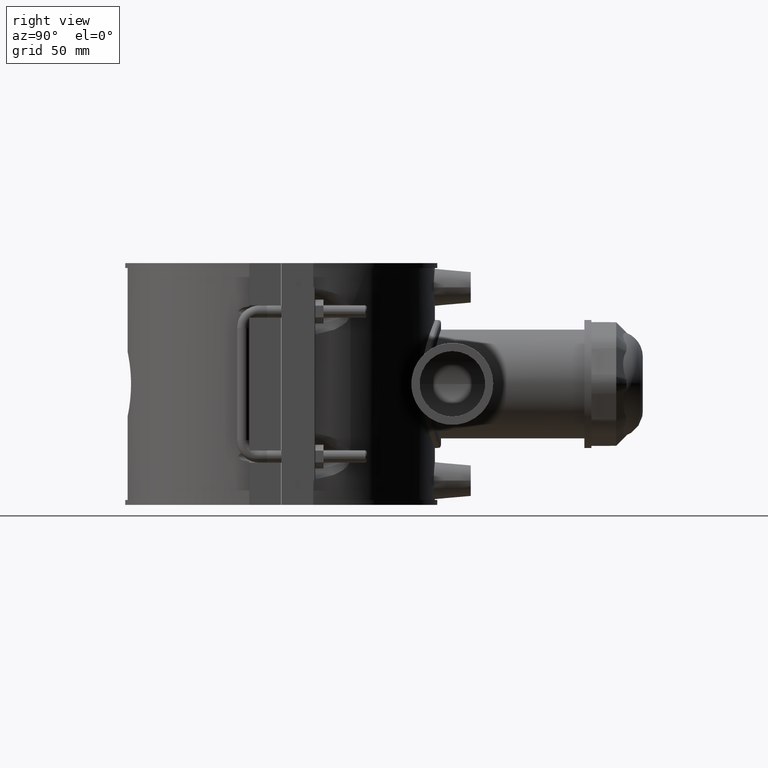
[diagram: clean part render]
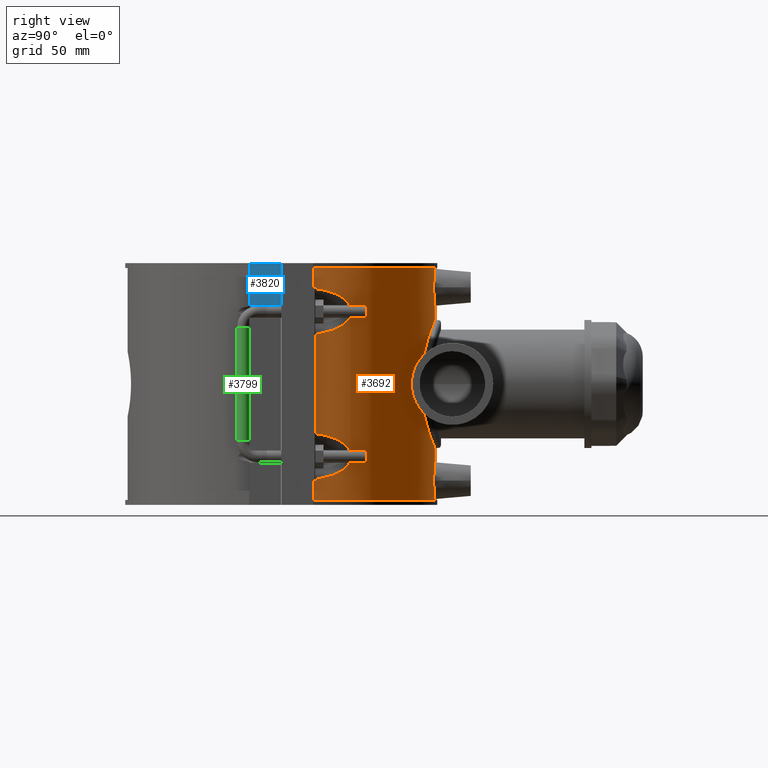
[diagram: same view with three faces highlighted in distinct colors, each labeled with its STEP entity id]
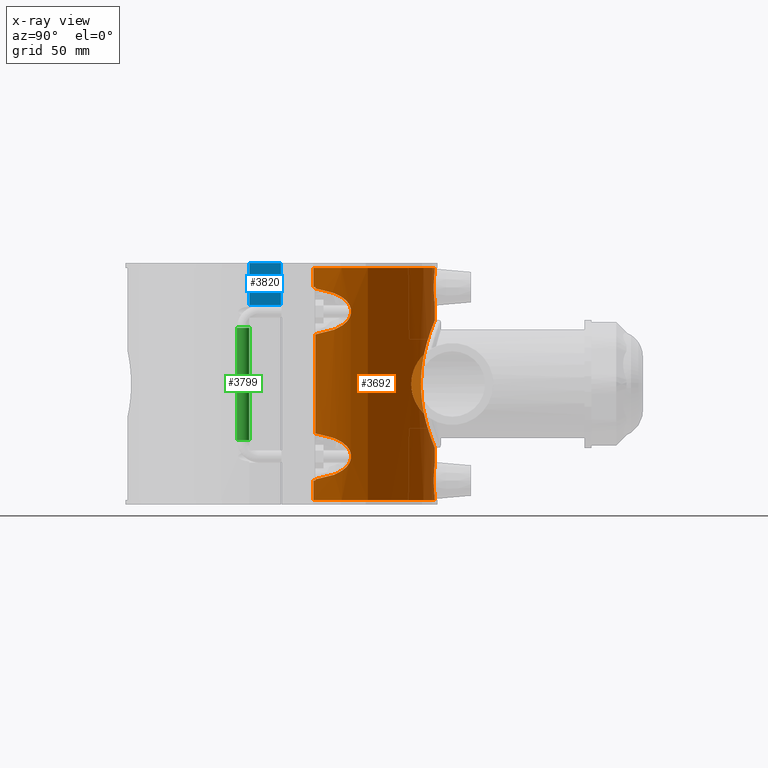
[diagram: x-ray of the same camera — body ghosted, the three highlighted faces saturated]
A machine part, right view with three faces highlighted in distinct colors.
The next image is the same camera in x-ray (body ghosted, the three faces saturated) — at least one of them is partly hidden behind the body in this view.
Their STEP definitions:

[orange] entity #3692 — the highlighted cylindrical surface (partial cylindrical patch) has radius 75 mm, axis along (0, 0, 1).
#117=LINE('',#6506,#416);
#133=LINE('',#6554,#432);
#137=LINE('',#6562,#436);
#138=LINE('',#6566,#437);
#139=LINE('',#6583,#438);
#140=LINE('',#6600,#439);
#141=LINE('',#6603,#440);
#142=LINE('',#6607,#441);
#143=LINE('',#6624,#442);
#144=LINE('',#6641,#443);
#416=VECTOR('',#4444,9.43999999999999);
#432=VECTOR('',#4486,9.43999999999999);
#436=VECTOR('',#4492,9.43999999999999);
#437=VECTOR('',#4495,0.588591724710401);
#438=VECTOR('',#4496,48.3771834494208);
#439=VECTOR('',#4497,0.588591724710401);
#440=VECTOR('',#4500,9.43999999999999);
#441=VECTOR('',#4503,0.58859172471041);
#442=VECTOR('',#4504,48.3771834494208);
#443=VECTOR('',#4505,0.588591724710401);
#823=CIRCLE('',#3933,75.);
#830=CIRCLE('',#3946,75.);
#834=CIRCLE('',#3954,75.);
#835=CIRCLE('',#3955,75.);
#836=CIRCLE('',#3956,75.);
#837=CIRCLE('',#3957,75.);
#916=FACE_BOUND('',#1274,.T.);
#917=FACE_BOUND('',#1275,.T.);
#918=FACE_BOUND('',#1276,.T.);
#1038=FACE_OUTER_BOUND('',#1273,.T.);
#1273=EDGE_LOOP('',(#2827,#2828,#2829,#2830,#2831,#2832,#2833,#2834,#2835,
#2836,#2837,#2838,#2839,#2840,#2841,#2842,#2843,#2844,#2845,#2846));
#1274=EDGE_LOOP('',(#2847,#2848));
#1275=EDGE_LOOP('',(#2849));
#1276=EDGE_LOOP('',(#2850));
#1460=B_SPLINE_CURVE_WITH_KNOTS('',3,(#5270,#5271,#5272,#5273,#5274,#5275,
#5276,#5277,#5278,#5279,#5280,#5281,#5282,#5283,#5284,#5285,#5286,#5287,
#5288,#5289,#5290,#5291,#5292,#5293,#5294,#5295),.UNSPECIFIED.,.F.,.F.,
(4,2,2,2,2,2,2,2,2,2,2,2,4),(2.04148520029184,2.36846390151587,2.76320788510185,
3.15795186868783,3.64306458661636,3.88562094558063,4.1281773045449,4.37073366350916,
4.61329002247343,5.09840274040196,5.49314672398794,5.88789070757392,6.21486940879795),
 .UNSPECIFIED.);
#1511=B_SPLINE_CURVE_WITH_KNOTS('',3,(#6416,#6417,#6418,#6419,#6420,#6421,
#6422,#6423,#6424,#6425,#6426,#6427,#6428,#6429,#6430,#6431,#6432,#6433,
#6434,#6435,#6436,#6437,#6438,#6439,#6440,#6441,#6442,#6443,#6444,#6445,
#6446,#6447,#6448,#6449,#6450,#6451,#6452,#6453,#6454,#6455,#6456,#6457,
#6458,#6459,#6460,#6461,#6462,#6463,#6464,#6465,#6466,#6467,#6468,#6469,
#6470,#6471,#6472,#6473),.UNSPECIFIED.,.F.,.F.,(4,2,2,2,2,2,2,2,2,2,2,2,
2,2,2,2,2,2,2,2,2,2,2,2,2,2,2,2,4),(1.45309948817262,1.7907766062182,2.38770214162426,
2.98390635362242,3.58011056562057,4.17631477761873,4.77251898961688,5.36872320161503,
5.96492741361319,6.56113162561134,7.1573358376095,7.75426137301556,8.35118690842163,
8.94811244382769,9.54503797923376,10.1419635146398,10.7388890500459,11.335814585452,
11.932740120858,12.5289443328562,13.1251485448543,13.7213527568525,14.3175569688506,
14.9137611808488,15.5099653928469,16.1061696048451,16.7023738168433,17.2992993522493,
17.6369764702949),.UNSPECIFIED.);
#1512=B_SPLINE_CURVE_WITH_KNOTS('',3,(#6568,#6569,#6570,#6571,#6572,#6573,
#6574,#6575,#6576,#6577,#6578,#6579,#6580,#6581),.UNSPECIFIED.,.F.,.F.,
(4,1,1,1,1,1,1,1,1,1,1,4),(-5.00102073920075,-4.37242310409207,-3.7438254689834,
-3.53429292394718,-3.11522783387473,-2.90569528883851,-2.69616274380228,
-2.48663019876606,-2.17233138121172,-1.85803256365739,-1.22943492854871,
-0.600837293440042),.UNSPECIFIED.);
#1513=B_SPLINE_CURVE_WITH_KNOTS('',3,(#6585,#6586,#6587,#6588,#6589,#6590,
#6591,#6592,#6593,#6594,#6595,#6596,#6597,#6598),.UNSPECIFIED.,.F.,.F.,
(4,1,1,1,1,1,1,1,1,1,1,4),(-5.00102073958228,-4.37242310439151,-3.74382546920074,
-3.42952665160536,-3.11522783400997,-2.69616274388279,-2.4866301988192,
-2.27709765375561,-2.06756510869202,-1.85803256362843,-1.22943492843766,
-0.600837293246895),.UNSPECIFIED.);
#1514=B_SPLINE_CURVE_WITH_KNOTS('',3,(#6609,#6610,#6611,#6612,#6613,#6614,
#6615,#6616,#6617,#6618,#6619,#6620,#6621,#6622),.UNSPECIFIED.,.F.,.F.,
(4,1,1,1,1,1,1,1,1,1,1,4),(-5.00088645742513,-4.37228881969447,-3.74369118196381,
-3.42939236309848,-3.11509354423315,-2.69602845241271,-2.48649590650249,
-2.27696336059227,-2.06743081468205,-1.85789826877183,-1.22930063104117,
-0.600702993310512),.UNSPECIFIED.);
#1515=B_SPLINE_CURVE_WITH_KNOTS('',3,(#6626,#6627,#6628,#6629,#6630,#6631,
#6632,#6633,#6634,#6635,#6636,#6637,#6638,#6639),.UNSPECIFIED.,.F.,.F.,
(4,1,1,1,1,1,1,1,1,1,1,4),(-5.00102073914786,-4.37242310379837,-3.74382546844888,
-3.42952665077414,-3.11522783309939,-2.9056952879829,-2.4866301977499,-2.27709765263341,
-2.06756510751691,-1.85803256240042,-1.22943492705093,-0.600837291701439),
 .UNSPECIFIED.);
#1516=B_SPLINE_CURVE_WITH_KNOTS('',3,(#6644,#6645,#6646,#6647,#6648,#6649,
#6650,#6651,#6652,#6653,#6654,#6655,#6656,#6657,#6658,#6659,#6660,#6661,
#6662,#6663,#6664,#6665,#6666,#6667,#6668,#6669,#6670,#6671,#6672,#6673,
#6674,#6675,#6676,#6677),.UNSPECIFIED.,.T.,.F.,(4,2,2,2,2,2,2,2,2,2,2,2,
2,2,2,2,4),(0.,0.341668696491551,0.683337392983103,1.02458425500419,1.36583111702527,
1.70707797904636,2.04832484106744,2.38999353755899,2.73166223405054,3.0733309305421,
3.41499962703365,3.75624648905473,4.09749335107582,4.4387402130969,4.77998707511798,
5.12165577160954,5.46332446810109),.UNSPECIFIED.);
#1517=B_SPLINE_CURVE_WITH_KNOTS('',3,(#6679,#6680,#6681,#6682,#6683,#6684,
#6685,#6686,#6687,#6688,#6689,#6690,#6691,#6692,#6693,#6694,#6695,#6696,
#6697,#6698,#6699,#6700,#6701,#6702,#6703,#6704,#6705,#6706,#6707,#6708,
#6709,#6710,#6711,#6712),.UNSPECIFIED.,.T.,.F.,(4,2,2,2,2,2,2,2,2,2,2,2,
2,2,2,2,4),(0.,0.341668696491551,0.683337392983103,1.02458425500419,1.36583111702527,
1.70707797904636,2.04832484106744,2.38999353755899,2.73166223405054,3.0733309305421,
3.41499962703365,3.75624648905473,4.09749335107582,4.4387402130969,4.77998707511798,
5.12165577160954,5.46332446810109),.UNSPECIFIED.);
#1576=VERTEX_POINT('',#5262);
#1577=VERTEX_POINT('',#5269);
#1674=VERTEX_POINT('',#6484);
#1675=VERTEX_POINT('',#6486);
#1682=VERTEX_POINT('',#6505);
#1693=VERTEX_POINT('',#6532);
#1694=VERTEX_POINT('',#6534);
#1701=VERTEX_POINT('',#6553);
#1704=VERTEX_POINT('',#6561);
#1705=VERTEX_POINT('',#6563);
#1706=VERTEX_POINT('',#6565);
#1707=VERTEX_POINT('',#6567);
#1708=VERTEX_POINT('',#6582);
#1709=VERTEX_POINT('',#6584);
#1710=VERTEX_POINT('',#6599);
#1711=VERTEX_POINT('',#6602);
#1712=VERTEX_POINT('',#6604);
#1713=VERTEX_POINT('',#6606);
#1714=VERTEX_POINT('',#6608);
#1715=VERTEX_POINT('',#6623);
#1716=VERTEX_POINT('',#6625);
#1717=VERTEX_POINT('',#6640);
#1718=VERTEX_POINT('',#6643);
#1719=VERTEX_POINT('',#6678);
#1930=EDGE_CURVE('',#1577,#1576,#1460,.T.);
#2083=EDGE_CURVE('',#1576,#1577,#1511,.T.);
#2090=EDGE_CURVE('',#1674,#1675,#823,.T.);
#2098=EDGE_CURVE('',#1682,#1674,#117,.T.);
#2112=EDGE_CURVE('',#1694,#1693,#830,.T.);
#2121=EDGE_CURVE('',#1694,#1701,#133,.T.);
#2125=EDGE_CURVE('',#1704,#1675,#137,.T.);
#2126=EDGE_CURVE('',#1704,#1705,#834,.T.);
#2127=EDGE_CURVE('',#1705,#1706,#138,.T.);
#2128=EDGE_CURVE('',#1707,#1706,#1512,.T.);
#2129=EDGE_CURVE('',#1707,#1708,#139,.T.);
#2130=EDGE_CURVE('',#1709,#1708,#1513,.T.);
#2131=EDGE_CURVE('',#1709,#1710,#140,.T.);
#2132=EDGE_CURVE('',#1710,#1701,#835,.T.);
#2133=EDGE_CURVE('',#1693,#1711,#141,.T.);
#2134=EDGE_CURVE('',#1711,#1712,#836,.T.);
#2135=EDGE_CURVE('',#1712,#1713,#142,.T.);
#2136=EDGE_CURVE('',#1714,#1713,#1514,.T.);
#2137=EDGE_CURVE('',#1714,#1715,#143,.T.);
#2138=EDGE_CURVE('',#1716,#1715,#1515,.T.);
#2139=EDGE_CURVE('',#1716,#1717,#144,.T.);
#2140=EDGE_CURVE('',#1717,#1682,#837,.T.);
#2141=EDGE_CURVE('',#1718,#1718,#1516,.T.);
#2142=EDGE_CURVE('',#1719,#1719,#1517,.T.);
#2827=ORIENTED_EDGE('',*,*,#2090,.T.);
#2828=ORIENTED_EDGE('',*,*,#2125,.F.);
#2829=ORIENTED_EDGE('',*,*,#2126,.T.);
#2830=ORIENTED_EDGE('',*,*,#2127,.T.);
#2831=ORIENTED_EDGE('',*,*,#2128,.F.);
#2832=ORIENTED_EDGE('',*,*,#2129,.T.);
#2833=ORIENTED_EDGE('',*,*,#2130,.F.);
#2834=ORIENTED_EDGE('',*,*,#2131,.T.);
#2835=ORIENTED_EDGE('',*,*,#2132,.T.);
#2836=ORIENTED_EDGE('',*,*,#2121,.F.);
#2837=ORIENTED_EDGE('',*,*,#2112,.T.);
#2838=ORIENTED_EDGE('',*,*,#2133,.T.);
#2839=ORIENTED_EDGE('',*,*,#2134,.T.);
#2840=ORIENTED_EDGE('',*,*,#2135,.T.);
#2841=ORIENTED_EDGE('',*,*,#2136,.F.);
#2842=ORIENTED_EDGE('',*,*,#2137,.T.);
#2843=ORIENTED_EDGE('',*,*,#2138,.F.);
#2844=ORIENTED_EDGE('',*,*,#2139,.T.);
#2845=ORIENTED_EDGE('',*,*,#2140,.T.);
#2846=ORIENTED_EDGE('',*,*,#2098,.T.);
#2847=ORIENTED_EDGE('',*,*,#1930,.T.);
#2848=ORIENTED_EDGE('',*,*,#2083,.T.);
#2849=ORIENTED_EDGE('',*,*,#2141,.T.);
#2850=ORIENTED_EDGE('',*,*,#2142,.T.);
#3575=CYLINDRICAL_SURFACE('',#3953,75.);
#3692=ADVANCED_FACE('',(#1038,#916,#917,#918),#3575,.T.);
#3933=AXIS2_PLACEMENT_3D('',#6488,#4426,#4427);
#3946=AXIS2_PLACEMENT_3D('',#6535,#4467,#4468);
#3953=AXIS2_PLACEMENT_3D('',#6560,#4490,#4491);
#3954=AXIS2_PLACEMENT_3D('',#6564,#4493,#4494);
#3955=AXIS2_PLACEMENT_3D('',#6601,#4498,#4499);
#3956=AXIS2_PLACEMENT_3D('',#6605,#4501,#4502);
#3957=AXIS2_PLACEMENT_3D('',#6642,#4506,#4507);
#4426=DIRECTION('center_axis',(0.,0.,1.));
#4427=DIRECTION('ref_axis',(1.,0.,0.));
#4444=DIRECTION('',(0.,0.,-1.));
#4467=DIRECTION('center_axis',(0.,0.,-1.));
#4468=DIRECTION('ref_axis',(1.,0.,0.));
#4486=DIRECTION('',(0.,0.,-1.));
#4490=DIRECTION('center_axis',(0.,0.,1.));
#4491=DIRECTION('ref_axis',(1.,0.,0.));
#4492=DIRECTION('',(0.,0.,-1.));
#4493=DIRECTION('center_axis',(0.,0.,-1.));
#4494=DIRECTION('ref_axis',(1.,0.,0.));
#4495=DIRECTION('',(0.,0.,1.));
#4496=DIRECTION('',(0.,0.,1.));
#4497=DIRECTION('',(0.,0.,1.));
#4498=DIRECTION('center_axis',(0.,0.,1.));
#4499=DIRECTION('ref_axis',(1.,0.,0.));
#4500=DIRECTION('',(0.,0.,-1.));
#4501=DIRECTION('center_axis',(0.,0.,1.));
#4502=DIRECTION('ref_axis',(1.,0.,0.));
#4503=DIRECTION('',(0.,0.,-1.));
#4504=DIRECTION('',(0.,0.,-1.));
#4505=DIRECTION('',(0.,0.,-1.));
#4506=DIRECTION('center_axis',(0.,0.,-1.));
#4507=DIRECTION('ref_axis',(1.,0.,0.));
#5262=CARTESIAN_POINT('',(27.6952222662598,69.6991726183715,14.4753985647624));
#5269=CARTESIAN_POINT('',(27.6952222662598,69.6991726183715,-14.4753985647624));
#5270=CARTESIAN_POINT('Ctrl Pts',(27.6952222657323,69.6991726181286,-14.4753985636247));
#5271=CARTESIAN_POINT('Ctrl Pts',(28.6725364903478,69.31083322101,-14.1051562548097));
#5272=CARTESIAN_POINT('Ctrl Pts',(29.6188669846309,68.9109063675723,-13.6942684231994));
#5273=CARTESIAN_POINT('Ctrl Pts',(31.625182495197,68.0168444202511,-12.6814006797332));
#5274=CARTESIAN_POINT('Ctrl Pts',(32.6677488629779,67.5204469761292,-12.0581675005615));
#5275=CARTESIAN_POINT('Ctrl Pts',(34.6197702638362,66.5406949321755,-10.6361407641811));
#5276=CARTESIAN_POINT('Ctrl Pts',(35.5297504558323,66.0569945317902,-9.83830657654839));
#5277=CARTESIAN_POINT('Ctrl Pts',(37.3686494739372,65.037894444091,-7.79342814407977));
#5278=CARTESIAN_POINT('Ctrl Pts',(38.3053895215447,64.4844985376729,-6.39858900451993));
#5279=CARTESIAN_POINT('Ctrl Pts',(39.2590126908829,63.9051502414296,-4.08346903473717));
#5280=CARTESIAN_POINT('Ctrl Pts',(39.50476504684,63.7527272868044,-3.27502744752757));
#5281=CARTESIAN_POINT('Ctrl Pts',(39.8299248556169,63.5500887782026,-1.63756734864026));
#5282=CARTESIAN_POINT('Ctrl Pts',(39.9092721056148,63.5,-0.808521196547556));
#5283=CARTESIAN_POINT('Ctrl Pts',(39.9092721056148,63.5,0.808521196547556));
#5284=CARTESIAN_POINT('Ctrl Pts',(39.8299248556169,63.5500887782026,1.63756734864026));
#5285=CARTESIAN_POINT('Ctrl Pts',(39.50476504684,63.7527272868044,3.27502744752757));
#5286=CARTESIAN_POINT('Ctrl Pts',(39.2590126908829,63.9051502414296,4.08346903473717));
#5287=CARTESIAN_POINT('Ctrl Pts',(38.3053895215447,64.4844985376729,6.39858900451993));
#5288=CARTESIAN_POINT('Ctrl Pts',(37.3686494739372,65.037894444091,7.79342814407976));
#5289=CARTESIAN_POINT('Ctrl Pts',(35.5297504558323,66.0569945317902,9.83830657654839));
#5290=CARTESIAN_POINT('Ctrl Pts',(34.6197702638362,66.5406949321755,10.6361407641811));
#5291=CARTESIAN_POINT('Ctrl Pts',(32.6677488629779,67.5204469761292,12.0581675005615));
#5292=CARTESIAN_POINT('Ctrl Pts',(31.625182495197,68.0168444202511,12.6814006797331));
#5293=CARTESIAN_POINT('Ctrl Pts',(29.6188669846309,68.9109063675723,13.6942684231994));
#5294=CARTESIAN_POINT('Ctrl Pts',(28.6725364903478,69.31083322101,14.1051562548097));
#5295=CARTESIAN_POINT('Ctrl Pts',(27.6952222657323,69.6991726181286,14.4753985636247));
#6416=CARTESIAN_POINT('Ctrl Pts',(27.6952222662598,69.699172617919,14.4753985652371));
#6417=CARTESIAN_POINT('Ctrl Pts',(27.1524487608455,69.9148456640696,15.513866197402));
#6418=CARTESIAN_POINT('Ctrl Pts',(26.5535128880388,70.1454588020122,16.5169485375646));
#6419=CARTESIAN_POINT('Ctrl Pts',(24.7644581549353,70.8039842379961,19.1692308714715));
#6420=CARTESIAN_POINT('Ctrl Pts',(23.4717648973439,71.2470745027844,20.7224089268153));
#6421=CARTESIAN_POINT('Ctrl Pts',(20.7240700844477,72.0942251051234,23.4701037397115));
#6422=CARTESIAN_POINT('Ctrl Pts',(19.1716938898946,72.5291753758607,24.7625812492182));
#6423=CARTESIAN_POINT('Ctrl Pts',(15.783298291342,73.3411386760727,27.048600185002));
#6424=CARTESIAN_POINT('Ctrl Pts',(13.9472339662247,73.7174654318418,28.042318728121));
#6425=CARTESIAN_POINT('Ctrl Pts',(10.1040031819991,74.3417726846631,29.644664133179));
#6426=CARTESIAN_POINT('Ctrl Pts',(8.09335150182213,74.5898263663282,30.2545652748952));
#6427=CARTESIAN_POINT('Ctrl Pts',(4.03505621609583,74.9190420202259,31.0573562920232));
#6428=CARTESIAN_POINT('Ctrl Pts',(1.98734737332718,75.,31.25));
#6429=CARTESIAN_POINT('Ctrl Pts',(-1.98734737332718,75.,31.25));
#6430=CARTESIAN_POINT('Ctrl Pts',(-4.03505621609582,74.9190420202259,31.0573562920232));
#6431=CARTESIAN_POINT('Ctrl Pts',(-8.09335150182212,74.5898263663282,30.2545652748952));
#6432=CARTESIAN_POINT('Ctrl Pts',(-10.104003181999,74.3417726846631,29.644664133179));
#6433=CARTESIAN_POINT('Ctrl Pts',(-13.9472339662247,73.7174654318418,28.042318728121));
#6434=CARTESIAN_POINT('Ctrl Pts',(-15.783298291342,73.3411386760727,27.048600185002));
#6435=CARTESIAN_POINT('Ctrl Pts',(-19.1716938898946,72.5291753758607,24.7625812492182));
#6436=CARTESIAN_POINT('Ctrl Pts',(-20.7240700844477,72.0942251051234,23.4701037397115));
#6437=CARTESIAN_POINT('Ctrl Pts',(-23.4717648973439,71.2470745027844,20.7224089268153));
#6438=CARTESIAN_POINT('Ctrl Pts',(-24.7644581549353,70.8039842379961,19.1692308714715));
#6439=CARTESIAN_POINT('Ctrl Pts',(-27.0497768419399,69.962791144864,15.7812348148193));
#6440=CARTESIAN_POINT('Ctrl Pts',(-28.0426490976936,69.5655241791259,13.9463758291996));
#6441=CARTESIAN_POINT('Ctrl Pts',(-29.6440269951615,68.8983606477932,10.1055970911061));
#6442=CARTESIAN_POINT('Ctrl Pts',(-30.2538022709298,68.6287187905002,8.09615884106485));
#6443=CARTESIAN_POINT('Ctrl Pts',(-31.0569252361218,68.2690339030925,4.03828356705892));
#6444=CARTESIAN_POINT('Ctrl Pts',(-31.25,68.1794507164732,1.98975178468689));
#6445=CARTESIAN_POINT('Ctrl Pts',(-31.25,68.1794507164732,-1.98975178468688));
#6446=CARTESIAN_POINT('Ctrl Pts',(-31.0569252361218,68.2690339030925,-4.03828356705891));
#6447=CARTESIAN_POINT('Ctrl Pts',(-30.2538022709298,68.6287187905002,-8.09615884106484));
#6448=CARTESIAN_POINT('Ctrl Pts',(-29.6440269951615,68.8983606477932,-10.1055970911061));
#6449=CARTESIAN_POINT('Ctrl Pts',(-28.0426490976936,69.5655241791259,-13.9463758291996));
#6450=CARTESIAN_POINT('Ctrl Pts',(-27.0497768419399,69.962791144864,-15.7812348148193));
#6451=CARTESIAN_POINT('Ctrl Pts',(-24.7644581549353,70.8039842379961,-19.1692308714715));
#6452=CARTESIAN_POINT('Ctrl Pts',(-23.4717648973439,71.2470745027844,-20.7224089268153));
#6453=CARTESIAN_POINT('Ctrl Pts',(-20.7240700844477,72.0942251051234,-23.4701037397115));
#6454=CARTESIAN_POINT('Ctrl Pts',(-19.1716938898946,72.5291753758607,-24.7625812492182));
#6455=CARTESIAN_POINT('Ctrl Pts',(-15.783298291342,73.3411386760727,-27.048600185002));
#6456=CARTESIAN_POINT('Ctrl Pts',(-13.9472339662247,73.7174654318418,-28.042318728121));
#6457=CARTESIAN_POINT('Ctrl Pts',(-10.104003181999,74.3417726846631,-29.644664133179));
#6458=CARTESIAN_POINT('Ctrl Pts',(-8.09335150182214,74.5898263663282,-30.2545652748952));
#6459=CARTESIAN_POINT('Ctrl Pts',(-4.03505621609584,74.9190420202259,-31.0573562920232));
#6460=CARTESIAN_POINT('Ctrl Pts',(-1.98734737332719,75.,-31.25));
#6461=CARTESIAN_POINT('Ctrl Pts',(1.98734737332718,75.,-31.25));
#6462=CARTESIAN_POINT('Ctrl Pts',(4.03505621609583,74.9190420202259,-31.0573562920232));
#6463=CARTESIAN_POINT('Ctrl Pts',(8.09335150182213,74.5898263663282,-30.2545652748952));
#6464=CARTESIAN_POINT('Ctrl Pts',(10.104003181999,74.3417726846631,-29.644664133179));
#6465=CARTESIAN_POINT('Ctrl Pts',(13.9472339662247,73.7174654318418,-28.042318728121));
#6466=CARTESIAN_POINT('Ctrl Pts',(15.783298291342,73.3411386760727,-27.048600185002));
#6467=CARTESIAN_POINT('Ctrl Pts',(19.1716938898946,72.5291753758607,-24.7625812492182));
#6468=CARTESIAN_POINT('Ctrl Pts',(20.7240700844477,72.0942251051234,-23.4701037397115));
#6469=CARTESIAN_POINT('Ctrl Pts',(23.4717648973439,71.2470745027844,-20.7224089268153));
#6470=CARTESIAN_POINT('Ctrl Pts',(24.7644581549353,70.8039842379961,-19.1692308714715));
#6471=CARTESIAN_POINT('Ctrl Pts',(26.5535128880388,70.1454588020122,-16.5169485375646));
#6472=CARTESIAN_POINT('Ctrl Pts',(27.1524487608455,69.9148456640696,-15.513866197402));
#6473=CARTESIAN_POINT('Ctrl Pts',(27.6952222662598,69.699172617919,-14.4753985652371));
#6484=CARTESIAN_POINT('',(73.3543412144094,15.625,-56.64));
#6486=CARTESIAN_POINT('',(-73.3543412144094,15.625,-56.64));
#6488=CARTESIAN_POINT('Origin',(0.,0.,-56.64));
#6505=CARTESIAN_POINT('',(73.3543412144094,15.625,-47.2));
#6506=CARTESIAN_POINT('',(73.3543412144094,15.625,0.));
#6532=CARTESIAN_POINT('',(73.3543412144094,15.625,56.64));
#6534=CARTESIAN_POINT('',(-73.3543412144094,15.625,56.64));
#6535=CARTESIAN_POINT('Origin',(0.,0.,56.64));
#6553=CARTESIAN_POINT('',(-73.3543412144094,15.625,47.2));
#6554=CARTESIAN_POINT('',(-73.3543412144094,15.625,0.));
#6560=CARTESIAN_POINT('Origin',(0.,0.,0.));
#6561=CARTESIAN_POINT('',(-73.3543412144094,15.625,-47.2));
#6562=CARTESIAN_POINT('',(-73.3543412144094,15.625,0.));
#6563=CARTESIAN_POINT('',(-73.13418745703,16.6250000000001,-47.2));
#6564=CARTESIAN_POINT('Origin',(0.,0.,-47.2));
#6565=CARTESIAN_POINT('',(-73.13418745703,16.625,-46.6114082752896));
#6566=CARTESIAN_POINT('',(-73.13418745703,16.6250000000001,0.));
#6567=CARTESIAN_POINT('',(-73.13418745703,16.625,-24.1885917247104));
#6568=CARTESIAN_POINT('Ctrl Pts',(-73.13418745703,16.625,-24.1885917247104));
#6569=CARTESIAN_POINT('Ctrl Pts',(-72.6336306341122,18.8269739260247,-24.5143801333608));
#6570=CARTESIAN_POINT('Ctrl Pts',(-71.4418534279628,23.1499185109787,-25.368236125087));
#6571=CARTESIAN_POINT('Ctrl Pts',(-69.6806255586373,27.840746802479,-27.1723961464241));
#6572=CARTESIAN_POINT('Ctrl Pts',(-68.1741453567587,31.303413805712,-29.5468945375646));
#6573=CARTESIAN_POINT('Ctrl Pts',(-67.2648547537538,33.1862035054787,-31.6585072858936));
#6574=CARTESIAN_POINT('Ctrl Pts',(-66.8040851814724,34.0914282615685,-34.337511031392));
#6575=CARTESIAN_POINT('Ctrl Pts',(-66.8051920972532,34.089700157877,-36.4622377441605));
#6576=CARTESIAN_POINT('Ctrl Pts',(-67.2044527904934,33.3037245652089,-38.8042600677748));
#6577=CARTESIAN_POINT('Ctrl Pts',(-68.0462917981667,31.5725060947776,-41.0183355651381));
#6578=CARTESIAN_POINT('Ctrl Pts',(-69.5573128023626,28.1719124534557,-43.4998799253462));
#6579=CARTESIAN_POINT('Ctrl Pts',(-71.441198493018,23.150932681923,-45.4310481636331));
#6580=CARTESIAN_POINT('Ctrl Pts',(-72.6336306341122,18.8269739260247,-46.2856198666392));
#6581=CARTESIAN_POINT('Ctrl Pts',(-73.13418745703,16.625,-46.6114082752896));
#6582=CARTESIAN_POINT('',(-73.13418745703,16.625,24.1885917247104));
#6583=CARTESIAN_POINT('',(-73.13418745703,16.6250000000001,0.));
#6584=CARTESIAN_POINT('',(-73.13418745703,16.625,46.6114082752896));
#6585=CARTESIAN_POINT('Ctrl Pts',(-73.13418745703,16.625,46.6114082752896));
#6586=CARTESIAN_POINT('Ctrl Pts',(-72.6336306339315,18.8269739268198,46.2856198665216));
#6587=CARTESIAN_POINT('Ctrl Pts',(-71.4427216108555,23.1485438629937,45.4299658191904));
#6588=CARTESIAN_POINT('Ctrl Pts',(-69.5543784617257,28.1765160876207,43.5020171112231));
#6589=CARTESIAN_POINT('Ctrl Pts',(-68.0496424652953,31.5672524769392,41.0160063504019));
#6590=CARTESIAN_POINT('Ctrl Pts',(-66.9843692457632,33.7516280315791,38.2577523269318));
#6591=CARTESIAN_POINT('Ctrl Pts',(-66.6787049997661,34.3337220553098,35.0139694985448));
#6592=CARTESIAN_POINT('Ctrl Pts',(-67.1498818476582,33.4121471135042,32.3289801943148));
#6593=CARTESIAN_POINT('Ctrl Pts',(-67.7213022674983,32.2420177581503,30.5992760844295));
#6594=CARTESIAN_POINT('Ctrl Pts',(-68.4244379392239,30.7275409379121,29.1512548204943));
#6595=CARTESIAN_POINT('Ctrl Pts',(-69.6806413612041,27.8407564829224,27.1700700811233));
#6596=CARTESIAN_POINT('Ctrl Pts',(-71.445147805742,23.1447338498214,25.3707632004619));
#6597=CARTESIAN_POINT('Ctrl Pts',(-72.6336306339315,18.8269739268198,24.5143801334785));
#6598=CARTESIAN_POINT('Ctrl Pts',(-73.13418745703,16.625,24.1885917247104));
#6599=CARTESIAN_POINT('',(-73.13418745703,16.6250000000001,47.2));
#6600=CARTESIAN_POINT('',(-73.13418745703,16.6250000000001,0.));
#6601=CARTESIAN_POINT('Origin',(0.,0.,47.2));
#6602=CARTESIAN_POINT('',(73.3543412144094,15.625,47.2));
#6603=CARTESIAN_POINT('',(73.3543412144094,15.625,0.));
#6604=CARTESIAN_POINT('',(73.13418745703,16.6250000000001,47.2));
#6605=CARTESIAN_POINT('Origin',(0.,0.,47.2));
#6606=CARTESIAN_POINT('',(73.13418745703,16.625,46.6114082752896));
#6607=CARTESIAN_POINT('',(73.13418745703,16.6250000000001,0.));
#6608=CARTESIAN_POINT('',(73.13418745703,16.625,24.1885917247104));
#6609=CARTESIAN_POINT('Ctrl Pts',(73.13418745703,16.625,24.1885917247104));
#6610=CARTESIAN_POINT('Ctrl Pts',(72.6336306395027,18.8269739023119,24.5143801298524));
#6611=CARTESIAN_POINT('Ctrl Pts',(71.4427216278044,23.1485438089075,25.3700341680455));
#6612=CARTESIAN_POINT('Ctrl Pts',(69.5543784824586,28.1765160374488,27.2979828622254));
#6613=CARTESIAN_POINT('Ctrl Pts',(68.0496424728506,31.5672524613315,29.7839936327724));
#6614=CARTESIAN_POINT('Ctrl Pts',(66.9843692481581,33.751628026616,32.5422476602084));
#6615=CARTESIAN_POINT('Ctrl Pts',(66.6787049985217,34.3337220577011,35.7860305034891));
#6616=CARTESIAN_POINT('Ctrl Pts',(67.1498818503303,33.4121471082138,38.4710198170828));
#6617=CARTESIAN_POINT('Ctrl Pts',(67.7213022742139,32.2420177439967,40.2007239322661));
#6618=CARTESIAN_POINT('Ctrl Pts',(68.4244379490698,30.7275409163158,41.6487451976327));
#6619=CARTESIAN_POINT('Ctrl Pts',(69.6806413807054,27.8407564351546,43.6299299436072));
#6620=CARTESIAN_POINT('Ctrl Pts',(71.4451478244458,23.1447337914717,45.4292368140713));
#6621=CARTESIAN_POINT('Ctrl Pts',(72.6336306395027,18.8269739023119,46.2856198701476));
#6622=CARTESIAN_POINT('Ctrl Pts',(73.13418745703,16.625,46.6114082752896));
#6623=CARTESIAN_POINT('',(73.13418745703,16.625,-24.1885917247104));
#6624=CARTESIAN_POINT('',(73.13418745703,16.6250000000001,0.));
#6625=CARTESIAN_POINT('',(73.13418745703,16.625,-46.6114082752896));
#6626=CARTESIAN_POINT('Ctrl Pts',(73.13418745703,16.625,-46.6114082752896));
#6627=CARTESIAN_POINT('Ctrl Pts',(72.6336306335822,18.8269739283565,-46.2856198662942));
#6628=CARTESIAN_POINT('Ctrl Pts',(71.4408092165106,23.1515428310723,-45.4308286396173));
#6629=CARTESIAN_POINT('Ctrl Pts',(69.5584024022179,28.1702048447063,-43.5008755696704));
#6630=CARTESIAN_POINT('Ctrl Pts',(68.0457685996165,31.573326391107,-41.0184205404252));
#6631=CARTESIAN_POINT('Ctrl Pts',(67.2073312950017,33.2992134499301,-38.8069632980878));
#6632=CARTESIAN_POINT('Ctrl Pts',(66.6852631086953,34.3234413546625,-35.7902548681309));
#6633=CARTESIAN_POINT('Ctrl Pts',(66.9429518491682,33.8279973243993,-32.900058742777));
#6634=CARTESIAN_POINT('Ctrl Pts',(67.7243937922213,32.2371712924233,-30.5993653107632));
#6635=CARTESIAN_POINT('Ctrl Pts',(68.4218936611557,30.731531494911,-29.1500426621685));
#6636=CARTESIAN_POINT('Ctrl Pts',(69.6816423335427,27.8391875452614,-27.1699565967457));
#6637=CARTESIAN_POINT('Ctrl Pts',(71.4435546510838,23.1472322476888,-25.3702175878445));
#6638=CARTESIAN_POINT('Ctrl Pts',(72.6336306335822,18.8269739283565,-24.5143801337058));
#6639=CARTESIAN_POINT('Ctrl Pts',(73.13418745703,16.625,-24.1885917247104));
#6640=CARTESIAN_POINT('',(73.13418745703,16.6250000000001,-47.2));
#6641=CARTESIAN_POINT('',(73.13418745703,16.6250000000001,0.));
#6642=CARTESIAN_POINT('Origin',(0.,0.,-47.2));
#6643=CARTESIAN_POINT('',(9.0793092533136,74.4484126323906,-47.2));
#6644=CARTESIAN_POINT('Ctrl Pts',(9.0793092533136,74.4484126323906,-47.2));
#6645=CARTESIAN_POINT('Ctrl Pts',(9.0793092533136,74.4484126323906,-46.0611043450282));
#6646=CARTESIAN_POINT('Ctrl Pts',(8.84946113589686,74.4775577133318,-44.8478007545603));
#6647=CARTESIAN_POINT('Ctrl Pts',(7.91818152844378,74.5823166978625,-42.6193985559919));
#6648=CARTESIAN_POINT('Ctrl Pts',(7.21684973308405,74.6563698188581,-41.604185186368));
#6649=CARTESIAN_POINT('Ctrl Pts',(5.60331245542121,74.7947708340694,-40.0044126497905));
#6650=CARTESIAN_POINT('Ctrl Pts',(4.58361091651927,74.8681481668674,-39.3122964536791));
#6651=CARTESIAN_POINT('Ctrl Pts',(2.35073887920452,74.9714820813101,-38.3945491238737));
#6652=CARTESIAN_POINT('Ctrl Pts',(1.13748954007028,75.,-38.1689483882964));
#6653=CARTESIAN_POINT('Ctrl Pts',(-1.13748954007028,75.,-38.1689483882964));
#6654=CARTESIAN_POINT('Ctrl Pts',(-2.35073887920452,74.9714820813101,-38.3945491238737));
#6655=CARTESIAN_POINT('Ctrl Pts',(-4.58361091651926,74.8681481668674,-39.3122964536791));
#6656=CARTESIAN_POINT('Ctrl Pts',(-5.60331245542121,74.7947708340694,-40.0044126497905));
#6657=CARTESIAN_POINT('Ctrl Pts',(-7.21684973308405,74.6563698188581,-41.604185186368));
#6658=CARTESIAN_POINT('Ctrl Pts',(-7.91818152844378,74.5823166978625,-42.6193985559919));
#6659=CARTESIAN_POINT('Ctrl Pts',(-8.84946113589686,74.4775577133318,-44.8478007545603));
#6660=CARTESIAN_POINT('Ctrl Pts',(-9.0793092533136,74.4484126323906,-46.0611043450282));
#6661=CARTESIAN_POINT('Ctrl Pts',(-9.0793092533136,74.4484126323906,-48.3388956549719));
#6662=CARTESIAN_POINT('Ctrl Pts',(-8.84946113589685,74.4775577133318,-49.5521992454398));
#6663=CARTESIAN_POINT('Ctrl Pts',(-7.91818152844378,74.5823166978625,-51.7806014440082));
#6664=CARTESIAN_POINT('Ctrl Pts',(-7.21684973308406,74.6563698188581,-52.795814813632));
#6665=CARTESIAN_POINT('Ctrl Pts',(-5.60331245542121,74.7947708340694,-54.3955873502096));
#6666=CARTESIAN_POINT('Ctrl Pts',(-4.58361091651926,74.8681481668674,-55.0877035463209));
#6667=CARTESIAN_POINT('Ctrl Pts',(-2.35073887920452,74.9714820813101,-56.0054508761263));
#6668=CARTESIAN_POINT('Ctrl Pts',(-1.13748954007028,75.,-56.2310516117037));
#6669=CARTESIAN_POINT('Ctrl Pts',(1.13748954007028,75.,-56.2310516117037));
#6670=CARTESIAN_POINT('Ctrl Pts',(2.35073887920452,74.9714820813101,-56.0054508761263));
#6671=CARTESIAN_POINT('Ctrl Pts',(4.58361091651926,74.8681481668674,-55.0877035463209));
#6672=CARTESIAN_POINT('Ctrl Pts',(5.60331245542121,74.7947708340694,-54.3955873502096));
#6673=CARTESIAN_POINT('Ctrl Pts',(7.21684973308405,74.6563698188581,-52.795814813632));
#6674=CARTESIAN_POINT('Ctrl Pts',(7.91818152844378,74.5823166978625,-51.7806014440082));
#6675=CARTESIAN_POINT('Ctrl Pts',(8.84946113589685,74.4775577133318,-49.5521992454398));
#6676=CARTESIAN_POINT('Ctrl Pts',(9.0793092533136,74.4484126323906,-48.3388956549719));
#6677=CARTESIAN_POINT('Ctrl Pts',(9.0793092533136,74.4484126323906,-47.2));
#6678=CARTESIAN_POINT('',(9.0793092533136,74.4484126323906,47.2));
#6679=CARTESIAN_POINT('Ctrl Pts',(-9.0793092533136,74.4484126323906,47.2));
#6680=CARTESIAN_POINT('Ctrl Pts',(-9.0793092533136,74.4484126323906,46.0611043450282));
#6681=CARTESIAN_POINT('Ctrl Pts',(-8.84946113589686,74.4775577133318,44.8478007545603));
#6682=CARTESIAN_POINT('Ctrl Pts',(-7.91818152844378,74.5823166978625,42.6193985559919));
#6683=CARTESIAN_POINT('Ctrl Pts',(-7.21684973308405,74.6563698188581,41.604185186368));
#6684=CARTESIAN_POINT('Ctrl Pts',(-5.60331245542121,74.7947708340694,40.0044126497905));
#6685=CARTESIAN_POINT('Ctrl Pts',(-4.58361091651927,74.8681481668674,39.3122964536791));
#6686=CARTESIAN_POINT('Ctrl Pts',(-2.35073887920452,74.9714820813101,38.3945491238737));
#6687=CARTESIAN_POINT('Ctrl Pts',(-1.13748954007028,75.,38.1689483882964));
#6688=CARTESIAN_POINT('Ctrl Pts',(1.13748954007028,75.,38.1689483882964));
#6689=CARTESIAN_POINT('Ctrl Pts',(2.35073887920452,74.9714820813101,38.3945491238737));
#6690=CARTESIAN_POINT('Ctrl Pts',(4.58361091651927,74.8681481668674,39.3122964536791));
#6691=CARTESIAN_POINT('Ctrl Pts',(5.60331245542121,74.7947708340694,40.0044126497905));
#6692=CARTESIAN_POINT('Ctrl Pts',(7.21684973308405,74.6563698188581,41.604185186368));
#6693=CARTESIAN_POINT('Ctrl Pts',(7.91818152844378,74.5823166978625,42.6193985559919));
#6694=CARTESIAN_POINT('Ctrl Pts',(8.84946113589686,74.4775577133318,44.8478007545603));
#6695=CARTESIAN_POINT('Ctrl Pts',(9.0793092533136,74.4484126323906,46.0611043450282));
#6696=CARTESIAN_POINT('Ctrl Pts',(9.0793092533136,74.4484126323906,48.3388956549719));
#6697=CARTESIAN_POINT('Ctrl Pts',(8.84946113589685,74.4775577133318,49.5521992454398));
#6698=CARTESIAN_POINT('Ctrl Pts',(7.91818152844378,74.5823166978625,51.7806014440082));
#6699=CARTESIAN_POINT('Ctrl Pts',(7.21684973308406,74.6563698188581,52.795814813632));
#6700=CARTESIAN_POINT('Ctrl Pts',(5.60331245542121,74.7947708340694,54.3955873502096));
#6701=CARTESIAN_POINT('Ctrl Pts',(4.58361091651926,74.8681481668674,55.0877035463209));
#6702=CARTESIAN_POINT('Ctrl Pts',(2.35073887920452,74.9714820813101,56.0054508761263));
#6703=CARTESIAN_POINT('Ctrl Pts',(1.13748954007028,75.,56.2310516117037));
#6704=CARTESIAN_POINT('Ctrl Pts',(-1.13748954007028,75.,56.2310516117037));
#6705=CARTESIAN_POINT('Ctrl Pts',(-2.35073887920452,74.9714820813101,56.0054508761263));
#6706=CARTESIAN_POINT('Ctrl Pts',(-4.58361091651927,74.8681481668674,55.0877035463209));
#6707=CARTESIAN_POINT('Ctrl Pts',(-5.60331245542121,74.7947708340694,54.3955873502096));
#6708=CARTESIAN_POINT('Ctrl Pts',(-7.21684973308406,74.6563698188581,52.795814813632));
#6709=CARTESIAN_POINT('Ctrl Pts',(-7.91818152844378,74.5823166978625,51.7806014440082));
#6710=CARTESIAN_POINT('Ctrl Pts',(-8.84946113589685,74.4775577133318,49.5521992454398));
#6711=CARTESIAN_POINT('Ctrl Pts',(-9.0793092533136,74.4484126323906,48.3388956549719));
#6712=CARTESIAN_POINT('Ctrl Pts',(-9.0793092533136,74.4484126323906,47.2));

[blue] entity #3820 — the highlighted planar face has unit normal (1, 0, 0).
#147=LINE('',#6721,#446);
#320=LINE('',#8040,#619);
#333=LINE('',#8067,#632);
#334=LINE('',#8068,#633);
#446=VECTOR('',#4514,20.6);
#619=VECTOR('',#5043,15.575);
#632=VECTOR('',#5070,20.6);
#633=VECTOR('',#5071,15.575);
#771=PLANE('',#4144);
#1166=FACE_OUTER_BOUND('',#1437,.T.);
#1437=EDGE_LOOP('',(#3463,#3464,#3465,#3466));
#1722=VERTEX_POINT('',#6718);
#1723=VERTEX_POINT('',#6720);
#1911=VERTEX_POINT('',#8038);
#1918=VERTEX_POINT('',#8066);
#2146=EDGE_CURVE('',#1722,#1723,#147,.T.);
#2432=EDGE_CURVE('',#1722,#1911,#320,.T.);
#2446=EDGE_CURVE('',#1911,#1918,#333,.T.);
#2447=EDGE_CURVE('',#1723,#1918,#334,.T.);
#3463=ORIENTED_EDGE('',*,*,#2432,.T.);
#3464=ORIENTED_EDGE('',*,*,#2446,.T.);
#3465=ORIENTED_EDGE('',*,*,#2447,.F.);
#3466=ORIENTED_EDGE('',*,*,#2146,.F.);
#3820=ADVANCED_FACE('',(#1166),#771,.T.);
#4144=AXIS2_PLACEMENT_3D('',#8065,#5068,#5069);
#4514=DIRECTION('',(0.,0.,1.));
#5043=DIRECTION('',(0.,1.,0.));
#5068=DIRECTION('center_axis',(1.,0.,0.));
#5069=DIRECTION('ref_axis',(0.,1.,0.));
#5070=DIRECTION('',(0.,0.,1.));
#5071=DIRECTION('',(0.,1.,0.));
#6718=CARTESIAN_POINT('',(81.,-15.625,38.4));
#6720=CARTESIAN_POINT('',(81.,-15.625,59.));
#6721=CARTESIAN_POINT('',(81.,-15.625,0.));
#8038=CARTESIAN_POINT('',(81.,-0.0500000000000078,38.4));
#8040=CARTESIAN_POINT('',(81.,-15.625,38.4));
#8065=CARTESIAN_POINT('Origin',(81.,-15.625,0.));
#8066=CARTESIAN_POINT('',(81.,-0.0500000000000078,59.));
#8067=CARTESIAN_POINT('',(81.,-0.0500000000000078,-29.5));
#8068=CARTESIAN_POINT('',(81.,-15.625,59.));

[green] entity #3799 — the highlighted cylindrical surface (edge-blend (fillet) strip) has radius 3 mm, axis along (0, 0, -1).
#151=LINE('',#6759,#450);
#302=LINE('',#7970,#601);
#450=VECTOR('',#4520,54.7999999999999);
#601=VECTOR('',#4977,54.7999999999999);
#884=CIRCLE('',#4104,3.);
#889=CIRCLE('',#4110,3.);
#1145=FACE_OUTER_BOUND('',#1414,.T.);
#1414=EDGE_LOOP('',(#3359,#3360,#3361,#3362));
#1727=VERTEX_POINT('',#6751);
#1728=VERTEX_POINT('',#6758);
#1880=VERTEX_POINT('',#7822);
#1888=VERTEX_POINT('',#7890);
#2152=EDGE_CURVE('',#1727,#1728,#151,.T.);
#2383=EDGE_CURVE('',#1880,#1727,#884,.T.);
#2399=EDGE_CURVE('',#1888,#1728,#889,.T.);
#2403=EDGE_CURVE('',#1888,#1880,#302,.T.);
#3359=ORIENTED_EDGE('',*,*,#2403,.F.);
#3360=ORIENTED_EDGE('',*,*,#2399,.T.);
#3361=ORIENTED_EDGE('',*,*,#2152,.F.);
#3362=ORIENTED_EDGE('',*,*,#2383,.F.);
#3599=CYLINDRICAL_SURFACE('',#4113,3.);
#3799=ADVANCED_FACE('',(#1145),#3599,.T.);
#4104=AXIS2_PLACEMENT_3D('',#7834,#4957,#4958);
#4110=AXIS2_PLACEMENT_3D('',#7952,#4969,#4970);
#4113=AXIS2_PLACEMENT_3D('',#7969,#4975,#4976);
#4520=DIRECTION('',(0.,0.,1.));
#4957=DIRECTION('center_axis',(0.,-6.12323399573677E-17,-1.));
#4958=DIRECTION('ref_axis',(-1.,0.,0.));
#4969=DIRECTION('center_axis',(0.,-6.12323399573677E-17,-1.));
#4970=DIRECTION('ref_axis',(-1.,0.,0.));
#4975=DIRECTION('center_axis',(0.,0.,-1.));
#4976=DIRECTION('ref_axis',(-1.,0.,0.));
#4977=DIRECTION('',(0.,0.,-1.));
#6751=CARTESIAN_POINT('',(72.3017579987008,-19.9362932938224,-27.4));
#6758=CARTESIAN_POINT('',(72.3017579987008,-19.9362932938224,27.3999999999999));
#6759=CARTESIAN_POINT('',(72.3017579987008,-19.9362932938224,27.3999999999999));
#7822=CARTESIAN_POINT('',(75.,-15.625,-27.4));
#7834=CARTESIAN_POINT('Origin',(75.,-18.6249999999995,-27.4));
#7890=CARTESIAN_POINT('',(75.,-15.625,27.3999999999999));
#7952=CARTESIAN_POINT('Origin',(75.,-18.6249999999995,27.3999999999999));
#7969=CARTESIAN_POINT('Origin',(75.,-18.6249999999995,27.3999999999999));
#7970=CARTESIAN_POINT('',(75.,-15.625,27.3999999999999));